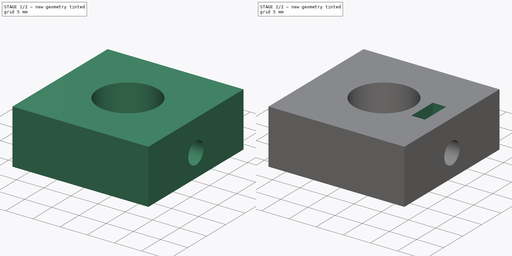
[diagram: build sequence overview — one tinted view per stage of 2, left to right]
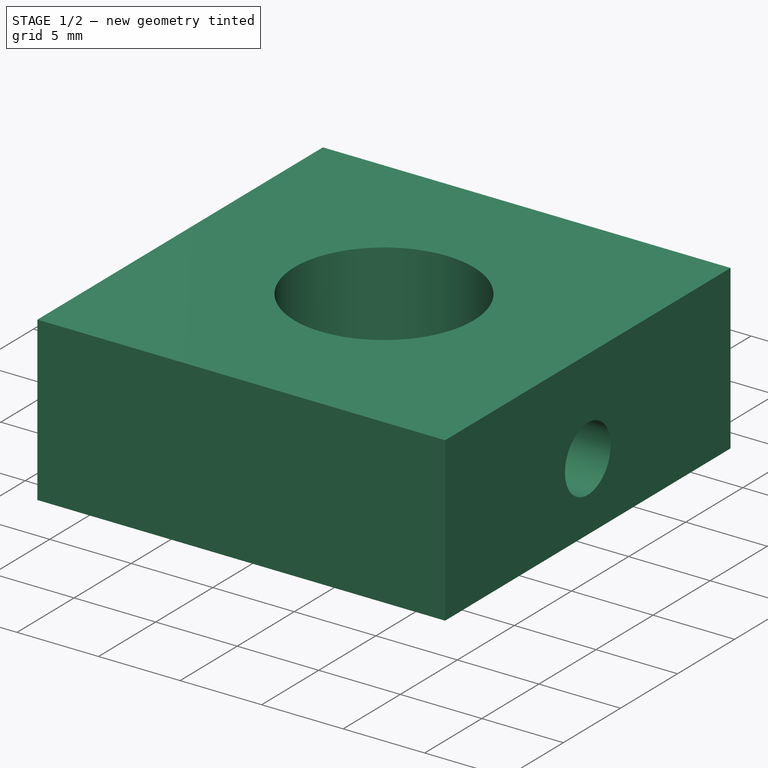
[diagram: stage 1 of 2 — iso view after this stage's code; geometry added in this stage tinted green]
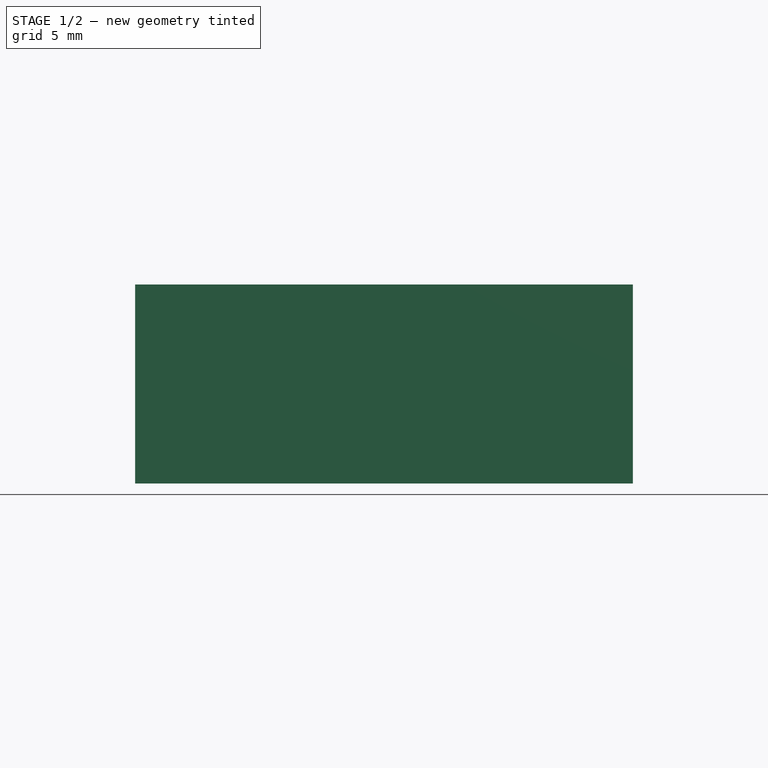
[diagram: stage 1 of 2 — front view after this stage's code; geometry added in this stage tinted green]
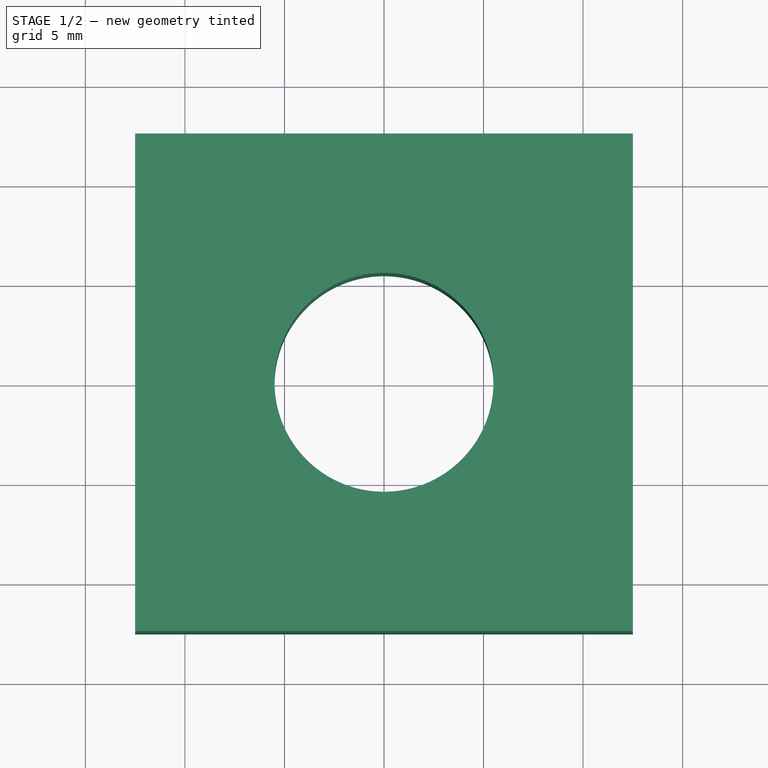
[diagram: stage 1 of 2 — top view after this stage's code; geometry added in this stage tinted green]
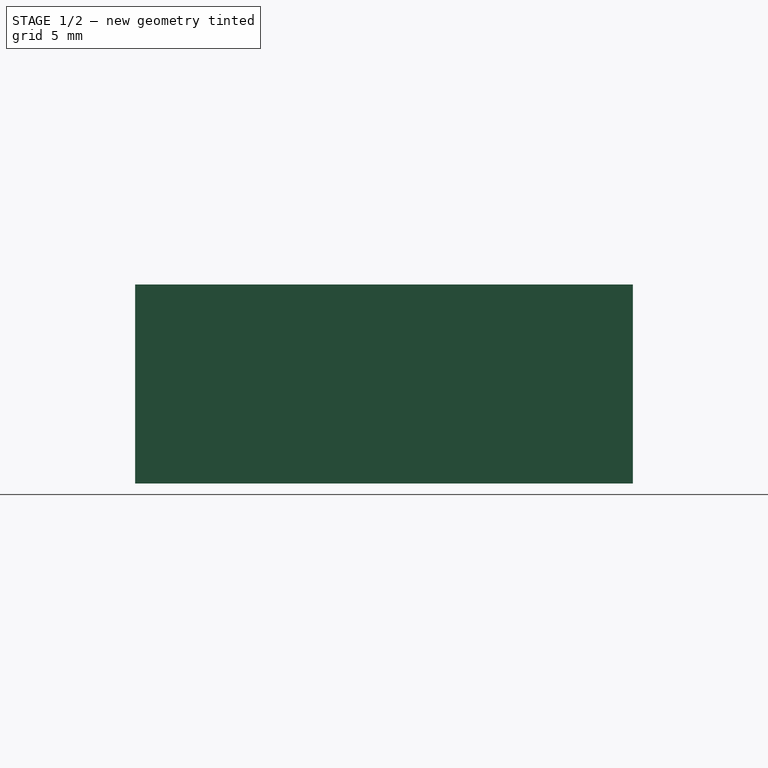
[diagram: stage 1 of 2 — right view after this stage's code; geometry added in this stage tinted green]
FCSTD DOCUMENT  (FreeCAD 0.20R29177 +233 (Git))
Label: pieza_tornillo
License: All rights reserved
LicenseURL: http://en.wikipedia.org/wiki/All_rights_reserved
objects: Sketcher::SketchObject×3, PartDesign::Pocket×2, PartDesign::Pad×1, PartDesign::Body×1
note: 10 computed .brp shape members not serialized (recipe doc carries the construction recipe); baked Part::Feature solids carry a one-line shape summary decoded from their .brp

FEATURE [Sketcher::SketchObject] Sketch
  FullyConstrained = true
  MapMode = 5
  Support = -> [XY_Plane]
  sketch-geometry (5):
    g0: LineSegment StartX=12.5 StartY=-12.5 StartZ=0 EndX=12.5 EndY=12.5 EndZ=0
    g1: LineSegment StartX=12.5 StartY=12.5 StartZ=0 EndX=-12.5 EndY=12.5 EndZ=0
    g2: LineSegment StartX=-12.5 StartY=12.5 StartZ=0 EndX=-12.5 EndY=-12.5 EndZ=0
    g3: LineSegment StartX=-12.5 StartY=-12.5 StartZ=0 EndX=12.5 EndY=-12.5 EndZ=0
    g4: Circle CenterX=0 CenterY=0 CenterZ=0 NormalX=0 NormalY=0 NormalZ=1 AngleXU=0 Radius=5.5
  constraints (13):
    c: Coincident(g1,g0)
    c: Horizontal(g1)
    c: Coincident(g2,g1)
    c: Coincident(g3,g2)
    c: Coincident(g3,g0)
    c: Horizontal(g3)
    c: Symmetric(g0,g1,g-1)
    c: Distance(g0) = 25
    c: Vertical(g0)
    c: Vertical(g2)
    c: Equal(g2,g1)
    c: Coincident(g4,g-1)
    c: Diameter(g4) = 11
FEATURE [PartDesign::Pad] Pad
  Direction = (0,0,1)
  Length = 10
  Length2 = 10
  Profile = -> Sketch
  ReferenceAxis = -> Sketch [N_Axis]
  Type = 0
FEATURE [Sketcher::SketchObject] Sketch001
  FullyConstrained = true
  MapMode = 5
  Placement = pos=(12.5,0,0) rot=(0.57735,0.57735,0.57735;2.0944rad)
  Support = -> [Pad]
  sketch-geometry (2):
    g0: GeomPoint X=0 Y=4.2 Z=0
    g1: Circle CenterX=0 CenterY=4.2 CenterZ=0 NormalX=0 NormalY=0 NormalZ=1 AngleXU=0 Radius=2
  constraints (4):
    c: PointOnObject(g0,g-2)
    c: Distance(g-1,g0) = 4.2
    c: Coincident(g1,g0)
    c: Diameter(g1) = 4
FEATURE [PartDesign::Pocket] Pocket
  BaseFeature = -> Pad
  Direction = (-1,0,0)
  Length = 5
  Length2 = 5
  Profile = -> Sketch001
  ReferenceAxis = -> Sketch001 [N_Axis]
  Type = 0
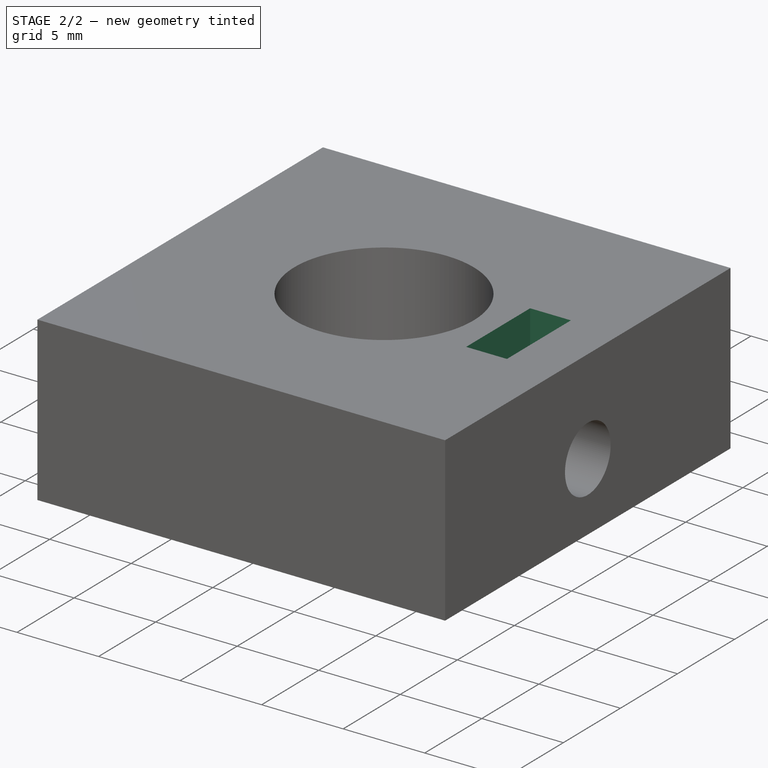
[diagram: stage 2 of 2 — iso view after this stage's code; geometry added in this stage tinted green]
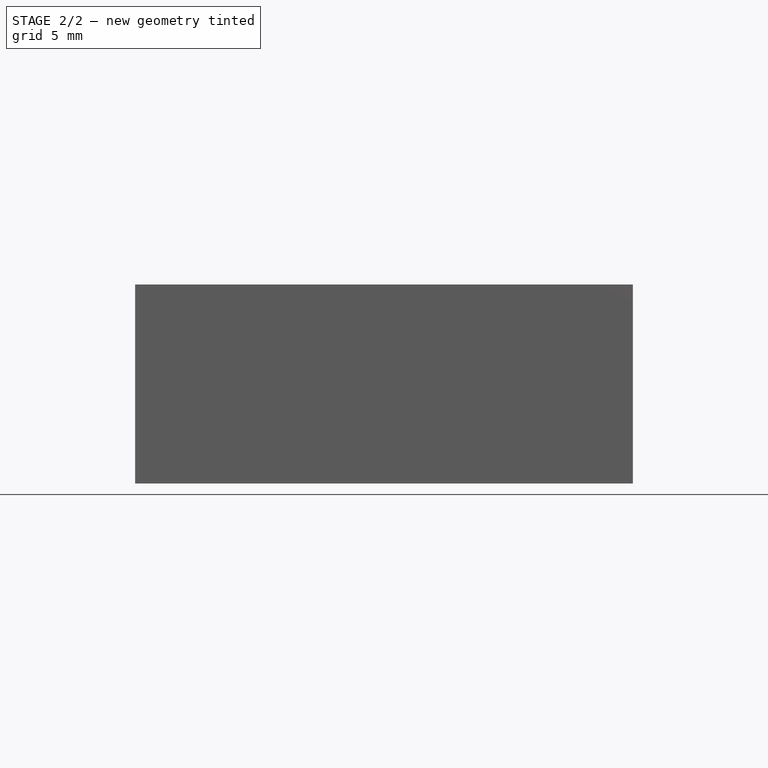
[diagram: stage 2 of 2 — front view after this stage's code; geometry added in this stage tinted green]
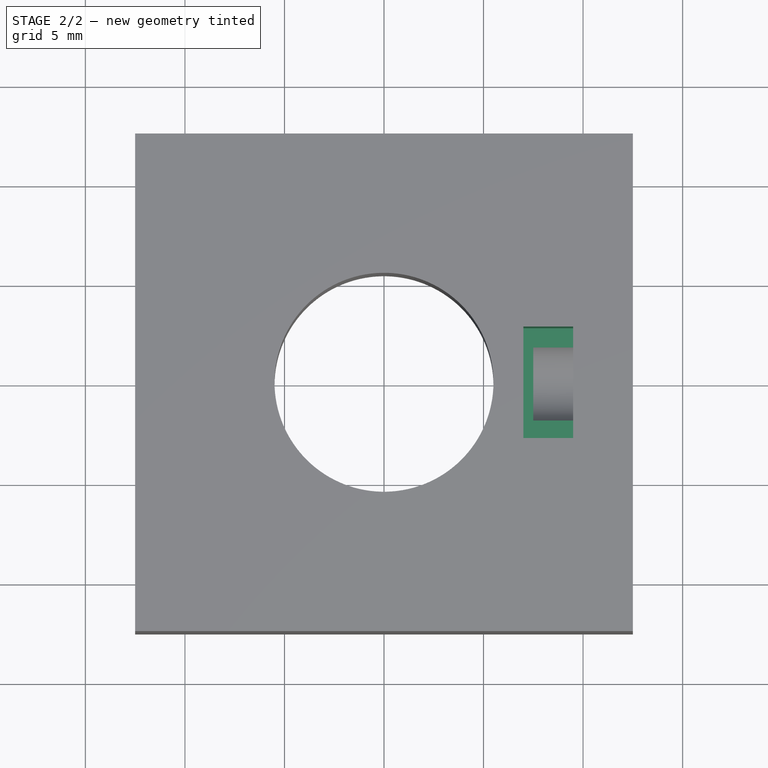
[diagram: stage 2 of 2 — top view after this stage's code; geometry added in this stage tinted green]
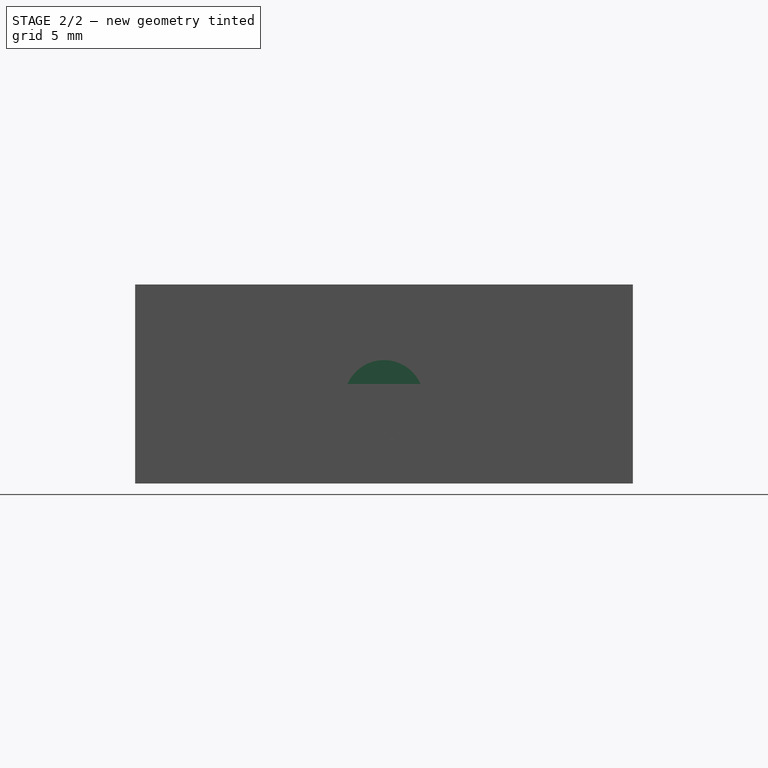
[diagram: stage 2 of 2 — right view after this stage's code; geometry added in this stage tinted green]
FEATURE [Sketcher::SketchObject] Sketch002
  FullyConstrained = true
  MapMode = 5
  Placement = pos=(0,0,10) rot=(0,0,1;0rad)
  Support = -> [Pocket]
  sketch-geometry (4):
    g0: LineSegment StartX=7 StartY=2.8 StartZ=0 EndX=7 EndY=-2.8 EndZ=0
    g1: LineSegment StartX=7 StartY=-2.8 StartZ=0 EndX=9.5 EndY=-2.8 EndZ=0
    g2: LineSegment StartX=7 StartY=2.8 StartZ=0 EndX=9.5 EndY=2.8 EndZ=0
    g3: LineSegment StartX=9.5 StartY=-2.8 StartZ=0 EndX=9.5 EndY=2.8 EndZ=0
  constraints (11):
    c: Coincident(g1,g0)
    c: Coincident(g2,g0)
    c: Coincident(g3,g1)
    c: Coincident(g3,g2)
    c: Vertical(g3)
    c: Horizontal(g2)
    c: Horizontal(g1)
    c: Symmetric(g0,g0,g-1)
    c: Distance(g0,g2) = 2.5
    c: Distance(g1,g2) = 5.6
    c: Distance(g0,g-2) = 7
FEATURE [PartDesign::Pocket] Pocket001
  BaseFeature = -> Pocket
  Direction = (0,0,-1)
  Length = 5
  Length2 = 5
  Profile = -> Sketch002
  ReferenceAxis = -> Sketch002 [N_Axis]
  Type = 0
FEATURE [PartDesign::Body] Body
  Group = -> [Sketch,Pad,Sketch001,Pocket,Sketch002,Pocket001]
  Origin = -> Origin
  Tip = -> Pocket001
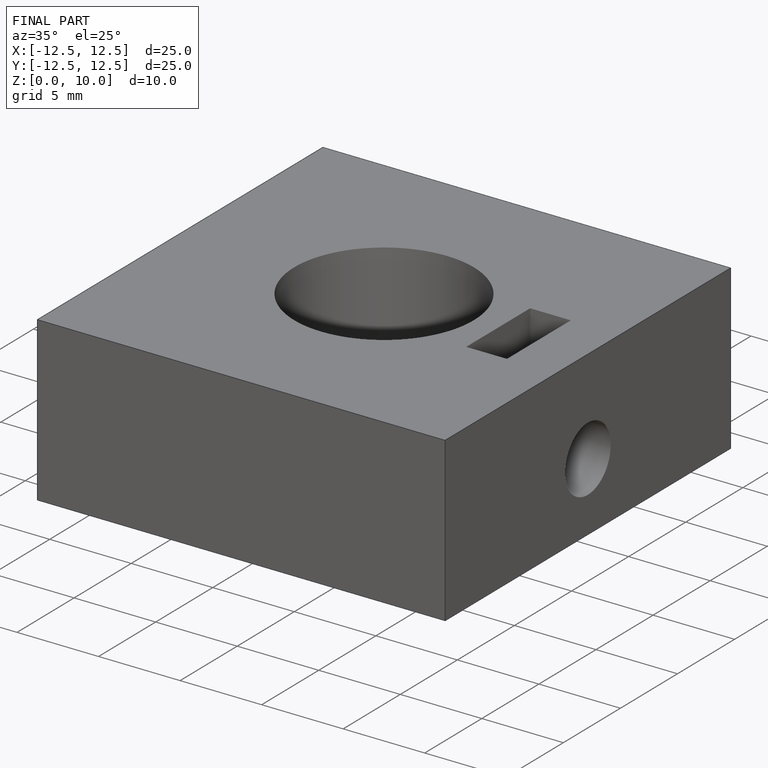
[diagram: finished part — iso view with bounding-box wireframe]
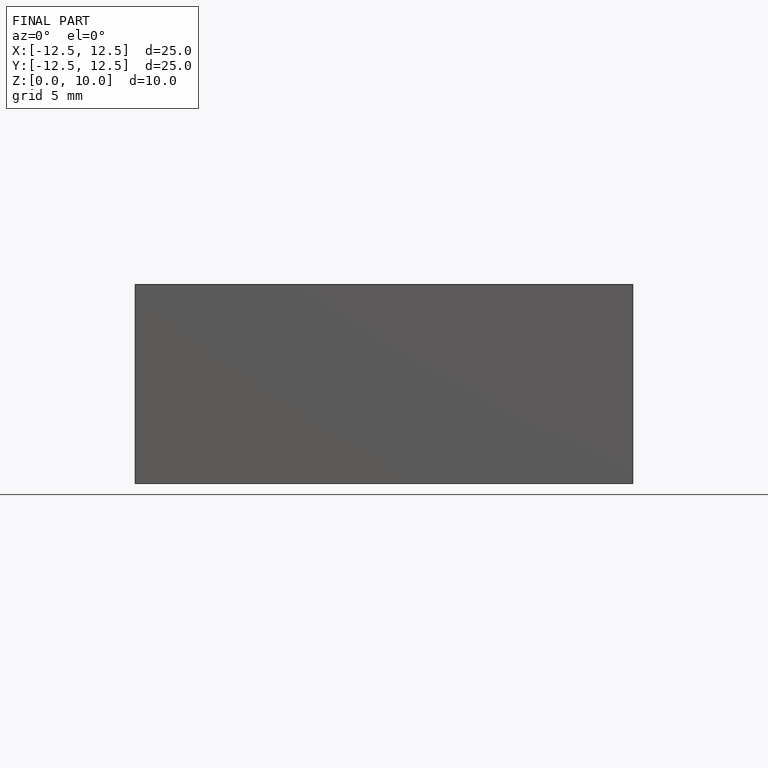
[diagram: finished part — front view with bounding-box wireframe]
